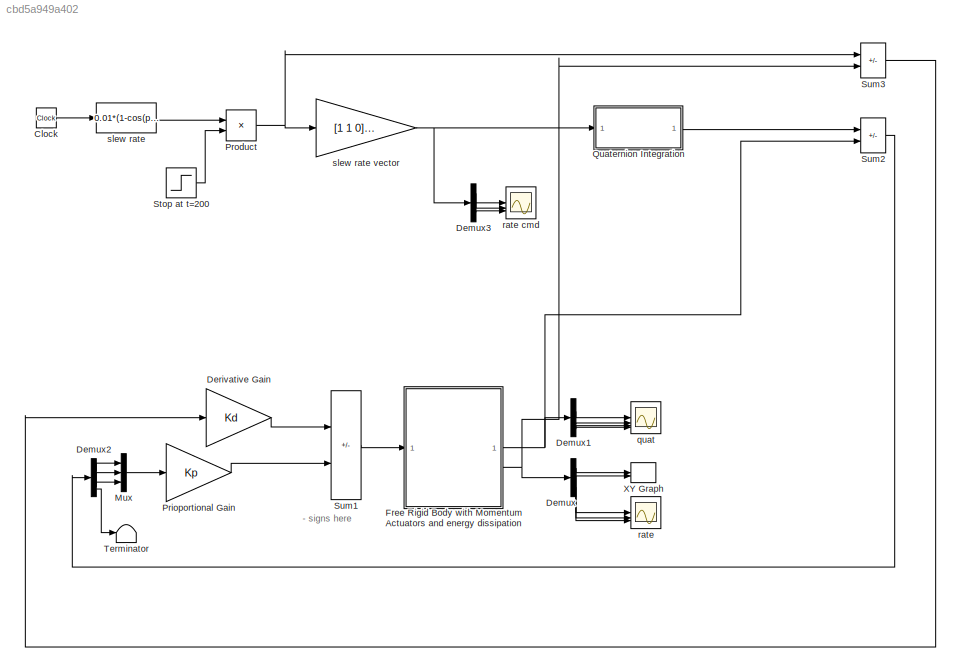
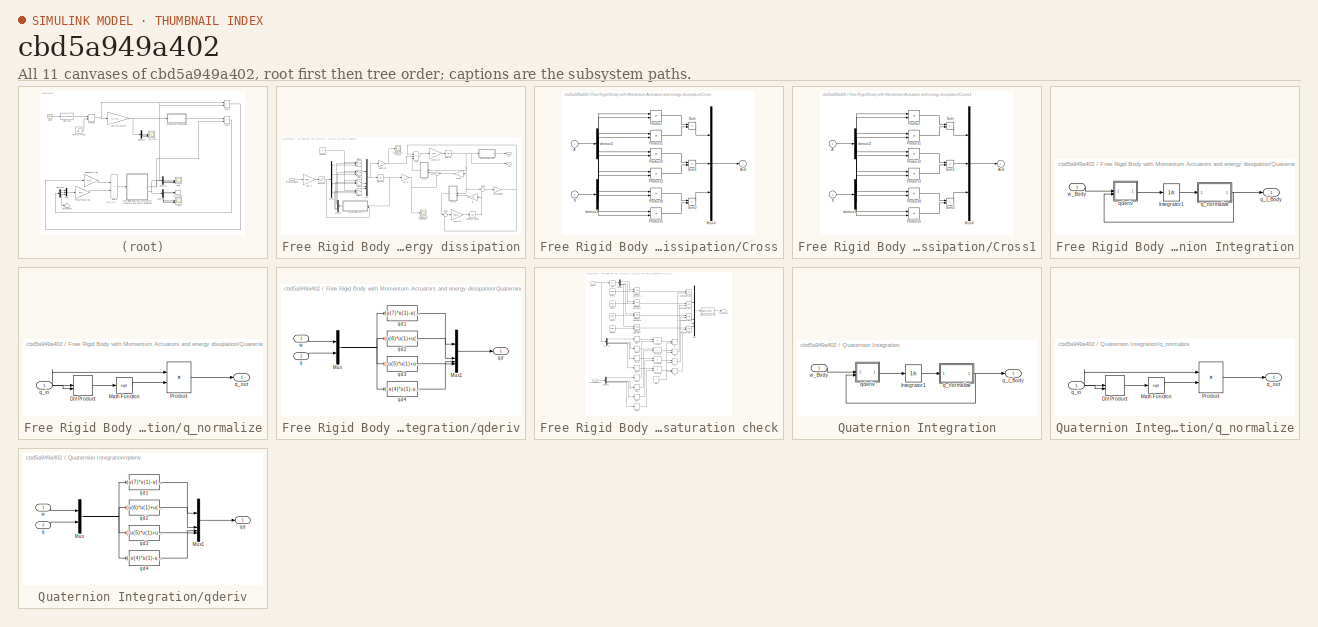
[diagram: thumbnail index - all 11 canvases of the model, root first then tree order]
MODEL slx_cbd5a949a402
KIND model
CONFIG AbsTol = auto
CONFIG EnableMultiTasking = on
CONFIG FixedStep = auto
CONFIG MaxStep = auto
CONFIG MinStep = auto
CONFIG RelTol = 1e-6
CONFIG SampleTimeConstraint = Unconstrained
CONFIG SolverName = ode45
CONFIG StartTime = 0.0
CONFIG StopTime = 300
BLOCK [Clock] Clock
BLOCK [Demux] Demux
  Outputs = 3
BLOCK [Demux] Demux1
BLOCK [Demux] Demux2
BLOCK [Demux] Demux3
  Outputs = 3
BLOCK [Gain] Derivative Gain
  Gain = Kd
  OutDataTypeStr = Inherit: Same as input
  ParamDataTypeStr = Inherit: Same as input
  SaturateOnIntegerOverflow = on
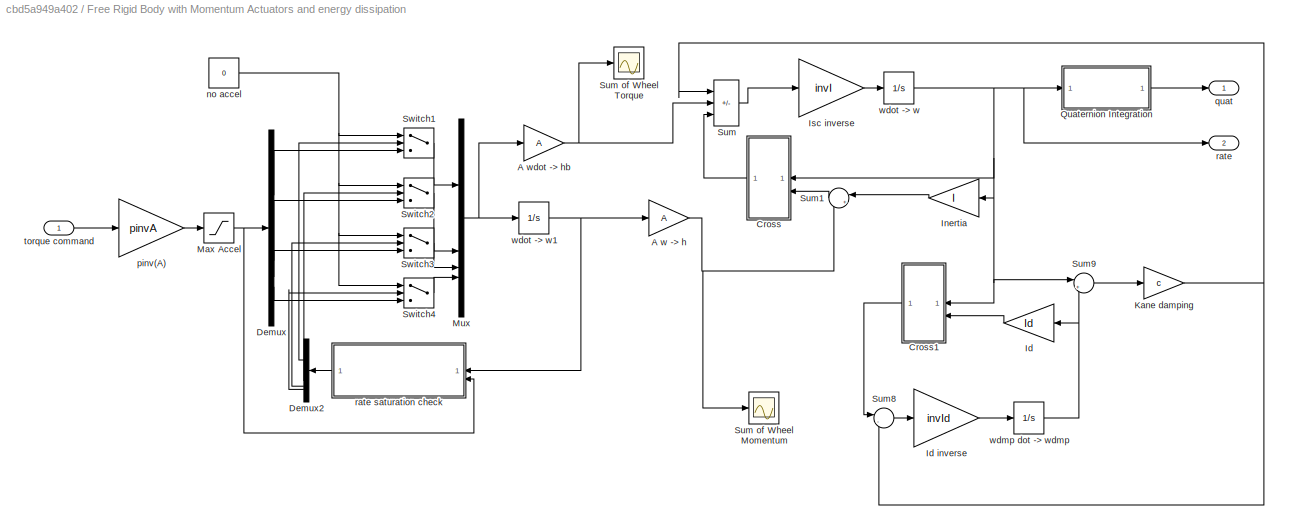
BLOCK [SubSystem] Free Rigid Body with Momentum Actuators and energy dissipation
BLOCK [Gain] Free Rigid Body with Momentum Actuators and energy dissipation/A w -> h
  Gain = A
  Multiplication = Matrix(K*u)
  OutDataTypeStr = Inherit: Same as input
  ParamDataTypeStr = Inherit: Same as input
  SaturateOnIntegerOverflow = on
BLOCK [Gain] Free Rigid Body with Momentum Actuators and energy dissipation/A wdot -> hb
  Gain = A
  Multiplication = Matrix(K*u)
  OutDataTypeStr = Inherit: Same as input
  ParamDataTypeStr = Inherit: Same as input
  SaturateOnIntegerOverflow = on
BLOCK [SubSystem] Free Rigid Body with Momentum Actuators and energy dissipation/Cross
BLOCK [Inport] Free Rigid Body with Momentum Actuators and energy dissipation/Cross/A
BLOCK [Outport] Free Rigid Body with Momentum Actuators and energy dissipation/Cross/AxB
  InitialOutput = 0
BLOCK [Inport] Free Rigid Body with Momentum Actuators and energy dissipation/Cross/B
  Port = 2
BLOCK [Mux] Free Rigid Body with Momentum Actuators and energy dissipation/Cross/Mux4
  Inputs = 3
BLOCK [Product] Free Rigid Body with Momentum Actuators and energy dissipation/Cross/Product
  InputSameDT = on
  OutDataTypeStr = Inherit: Same as first input
  SaturateOnIntegerOverflow = on
BLOCK [Product] Free Rigid Body with Momentum Actuators and energy dissipation/Cross/Product1
  InputSameDT = on
  OutDataTypeStr = Inherit: Same as first input
  SaturateOnIntegerOverflow = on
BLOCK [Product] Free Rigid Body with Momentum Actuators and energy dissipation/Cross/Product2
  InputSameDT = on
  OutDataTypeStr = Inherit: Same as first input
  SaturateOnIntegerOverflow = on
BLOCK [Product] Free Rigid Body with Momentum Actuators and energy dissipation/Cross/Product3
  InputSameDT = on
  OutDataTypeStr = Inherit: Same as first input
  SaturateOnIntegerOverflow = on
BLOCK [Product] Free Rigid Body with Momentum Actuators and energy dissipation/Cross/Product4
  InputSameDT = on
  OutDataTypeStr = Inherit: Same as first input
  SaturateOnIntegerOverflow = on
BLOCK [Product] Free Rigid Body with Momentum Actuators and energy dissipation/Cross/Product5
  InputSameDT = on
  OutDataTypeStr = Inherit: Same as first input
  SaturateOnIntegerOverflow = on
BLOCK [Sum] Free Rigid Body with Momentum Actuators and energy dissipation/Cross/Sum
  IconShape = rectangular
  InputSameDT = on
  Inputs = +-
  OutDataTypeStr = Inherit: Same as first input
  SaturateOnIntegerOverflow = on
BLOCK [Sum] Free Rigid Body with Momentum Actuators and energy dissipation/Cross/Sum1
  IconShape = rectangular
  InputSameDT = on
  Inputs = +-
  OutDataTypeStr = Inherit: Same as first input
  SaturateOnIntegerOverflow = on
BLOCK [Sum] Free Rigid Body with Momentum Actuators and energy dissipation/Cross/Sum2
  IconShape = rectangular
  InputSameDT = on
  Inputs = +-
  OutDataTypeStr = Inherit: Same as first input
  SaturateOnIntegerOverflow = on
BLOCK [Demux] Free Rigid Body with Momentum Actuators and energy dissipation/Cross/demux2
  DisplayOption = none
  Outputs = 3
BLOCK [Demux] Free Rigid Body with Momentum Actuators and energy dissipation/Cross/demux3
  DisplayOption = none
  Outputs = 3
BLOCK [SubSystem] Free Rigid Body with Momentum Actuators and energy dissipation/Cross1
BLOCK [Inport] Free Rigid Body with Momentum Actuators and energy dissipation/Cross1/A
BLOCK [Outport] Free Rigid Body with Momentum Actuators and energy dissipation/Cross1/AxB
  InitialOutput = 0
BLOCK [Inport] Free Rigid Body with Momentum Actuators and energy dissipation/Cross1/B
  Port = 2
BLOCK [Mux] Free Rigid Body with Momentum Actuators and energy dissipation/Cross1/Mux4
  Inputs = 3
BLOCK [Product] Free Rigid Body with Momentum Actuators and energy dissipation/Cross1/Product
  InputSameDT = on
  OutDataTypeStr = Inherit: Same as first input
  SaturateOnIntegerOverflow = on
BLOCK [Product] Free Rigid Body with Momentum Actuators and energy dissipation/Cross1/Product1
  InputSameDT = on
  OutDataTypeStr = Inherit: Same as first input
  SaturateOnIntegerOverflow = on
BLOCK [Product] Free Rigid Body with Momentum Actuators and energy dissipation/Cross1/Product2
  InputSameDT = on
  OutDataTypeStr = Inherit: Same as first input
  SaturateOnIntegerOverflow = on
BLOCK [Product] Free Rigid Body with Momentum Actuators and energy dissipation/Cross1/Product3
  InputSameDT = on
  OutDataTypeStr = Inherit: Same as first input
  SaturateOnIntegerOverflow = on
BLOCK [Product] Free Rigid Body with Momentum Actuators and energy dissipation/Cross1/Product4
  InputSameDT = on
  OutDataTypeStr = Inherit: Same as first input
  SaturateOnIntegerOverflow = on
BLOCK [Product] Free Rigid Body with Momentum Actuators and energy dissipation/Cross1/Product5
  InputSameDT = on
  OutDataTypeStr = Inherit: Same as first input
  SaturateOnIntegerOverflow = on
BLOCK [Sum] Free Rigid Body with Momentum Actuators and energy dissipation/Cross1/Sum
  IconShape = rectangular
  InputSameDT = on
  Inputs = +-
  OutDataTypeStr = Inherit: Same as first input
  SaturateOnIntegerOverflow = on
BLOCK [Sum] Free Rigid Body with Momentum Actuators and energy dissipation/Cross1/Sum1
  IconShape = rectangular
  InputSameDT = on
  Inputs = +-
  OutDataTypeStr = Inherit: Same as first input
  SaturateOnIntegerOverflow = on
BLOCK [Sum] Free Rigid Body with Momentum Actuators and energy dissipation/Cross1/Sum2
  IconShape = rectangular
  InputSameDT = on
  Inputs = +-
  OutDataTypeStr = Inherit: Same as first input
  SaturateOnIntegerOverflow = on
BLOCK [Demux] Free Rigid Body with Momentum Actuators and energy dissipation/Cross1/demux2
  DisplayOption = none
  Outputs = 3
BLOCK [Demux] Free Rigid Body with Momentum Actuators and energy dissipation/Cross1/demux3
  DisplayOption = none
  Outputs = 3
BLOCK [Demux] Free Rigid Body with Momentum Actuators and energy dissipation/Demux
  DisplayOption = none
BLOCK [Demux] Free Rigid Body with Momentum Actuators and energy dissipation/Demux2
  DisplayOption = none
BLOCK [Gain] Free Rigid Body with Momentum Actuators and energy dissipation/Id
  Gain = Id
  Multiplication = Matrix(K*u)
  OutDataTypeStr = Inherit: Same as input
  ParamDataTypeStr = Inherit: Same as input
  SaturateOnIntegerOverflow = on
BLOCK [Gain] Free Rigid Body with Momentum Actuators and energy dissipation/Id inverse
  Gain = invId
  Multiplication = Matrix(K*u)
  OutDataTypeStr = Inherit: Same as input
  ParamDataTypeStr = Inherit: Same as input
  SaturateOnIntegerOverflow = on
BLOCK [Gain] Free Rigid Body with Momentum Actuators and energy dissipation/Inertia
  Gain = I
  Multiplication = Matrix(K*u)
  OutDataTypeStr = Inherit: Same as input
  ParamDataTypeStr = Inherit: Same as input
  SaturateOnIntegerOverflow = on
BLOCK [Gain] Free Rigid Body with Momentum Actuators and energy dissipation/Isc inverse
  Gain = invI
  Multiplication = Matrix(K*u)
  OutDataTypeStr = Inherit: Same as input
  ParamDataTypeStr = Inherit: Same as input
  SaturateOnIntegerOverflow = on
BLOCK [Gain] Free Rigid Body with Momentum Actuators and energy dissipation/Kane damping
  Gain = c
  OutDataTypeStr = Inherit: Same as input
  ParamDataTypeStr = Inherit: Same as input
  SaturateOnIntegerOverflow = on
BLOCK [Saturate] Free Rigid Body with Momentum Actuators and energy dissipation/Max Accel
  LowerLimit = -accelmax
  UpperLimit = accelmax
BLOCK [Mux] Free Rigid Body with Momentum Actuators and energy dissipation/Mux
  DisplayOption = bar
BLOCK [SubSystem] Free Rigid Body with Momentum Actuators and energy dissipation/Quaternion Integration
BLOCK [Integrator] Free Rigid Body with Momentum Actuators and energy dissipation/Quaternion Integration/Integrator1
  InitialCondition = q_init
BLOCK [Outport] Free Rigid Body with Momentum Actuators and energy dissipation/Quaternion Integration/q_I_Body
BLOCK [SubSystem] Free Rigid Body with Momentum Actuators and energy dissipation/Quaternion Integration/q_normalize
BLOCK [DotProduct] Free Rigid Body with Momentum Actuators and energy dissipation/Quaternion Integration/q_normalize/Dot Product
  OutDataTypeStr = Inherit: Inherit via internal rule
BLOCK [Math] Free Rigid Body with Momentum Actuators and energy dissipation/Quaternion Integration/q_normalize/Math Function
  Operator = sqrt
  SignedPower = on
BLOCK [Product] Free Rigid Body with Momentum Actuators and energy dissipation/Quaternion Integration/q_normalize/Product
  InputSameDT = on
  Inputs = */
  OutDataTypeStr = Inherit: Same as first input
  SaturateOnIntegerOverflow = on
BLOCK [Inport] Free Rigid Body with Momentum Actuators and energy dissipation/Quaternion Integration/q_normalize/q_in
  PortDimensions = 4
BLOCK [Outport] Free Rigid Body with Momentum Actuators and energy dissipation/Quaternion Integration/q_normalize/q_out
BLOCK [SubSystem] Free Rigid Body with Momentum Actuators and energy dissipation/Quaternion Integration/qderiv
BLOCK [Mux] Free Rigid Body with Momentum Actuators and energy dissipation/Quaternion Integration/qderiv/Mux
  DisplayOption = bar
  Inputs = 2
BLOCK [Mux] Free Rigid Body with Momentum Actuators and energy dissipation/Quaternion Integration/qderiv/Mux1
  DisplayOption = bar
BLOCK [Inport] Free Rigid Body with Momentum Actuators and energy dissipation/Quaternion Integration/qderiv/q
  Port = 2
BLOCK [Outport] Free Rigid Body with Momentum Actuators and energy dissipation/Quaternion Integration/qderiv/qd
BLOCK [Fcn] Free Rigid Body with Momentum Actuators and energy dissipation/Quaternion Integration/qderiv/qd1
  Expr = (u(7)*u(1)-u(6)*u(2)+u(5)*u(3))/2
BLOCK [Fcn] Free Rigid Body with Momentum Actuators and energy dissipation/Quaternion Integration/qderiv/qd2
  Expr = (u(6)*u(1)+u(7)*u(2)-u(4)*u(3))/2
BLOCK [Fcn] Free Rigid Body with Momentum Actuators and energy dissipation/Quaternion Integration/qderiv/qd3
  Expr = (-u(5)*u(1)+u(4)*u(2)+u(7)*u(3))/2
BLOCK [Fcn] Free Rigid Body with Momentum Actuators and energy dissipation/Quaternion Integration/qderiv/qd4
  Expr = (-u(4)*u(1)-u(5)*u(2)-u(6)*u(3))/2
BLOCK [Inport] Free Rigid Body with Momentum Actuators and energy dissipation/Quaternion Integration/qderiv/w
BLOCK [Inport] Free Rigid Body with Momentum Actuators and energy dissipation/Quaternion Integration/w_Body
BLOCK [Sum] Free Rigid Body with Momentum Actuators and energy dissipation/Sum
  IconShape = rectangular
  InputSameDT = on
  Inputs = |---
  OutDataTypeStr = Inherit: Same as first input
  SaturateOnIntegerOverflow = on
BLOCK [Scope] Free Rigid Body with Momentum Actuators and energy dissipation/Sum of Wheel Momentum
  Floating = off
  NumInputPorts = 1
  ScopeSpecificationString = Simulink.scopes.TimeScopeBlockCfg('CurrentConfiguration', extmgr.ConfigurationSet(extmgr.Configuration('Core','General UI',true),extmgr.Configuration('Core','Source UI',true),extmgr.Configuration('Sources','WiredSimulink',true,'DataLoggingVariableName','ScopeData4','DataLoggingSaveFormat','StructureWithTime','DataLoggingDecimation','1','DataLoggingDecimateData',true),extmgr.Configuration('Visuals'...<+1664ch>
BLOCK [Scope] Free Rigid Body with Momentum Actuators and energy dissipation/Sum of Wheel Torque
  Floating = off
  NumInputPorts = 1
  ScopeSpecificationString = Simulink.scopes.TimeScopeBlockCfg('CurrentConfiguration', extmgr.ConfigurationSet(extmgr.Configuration('Core','General UI',true),extmgr.Configuration('Core','Source UI',true),extmgr.Configuration('Sources','WiredSimulink',true,'DataLoggingVariableName','ScopeData3','DataLoggingSaveFormat','StructureWithTime','DataLoggingDecimation','1','DataLoggingDecimateData',true),extmgr.Configuration('Visuals'...<+1708ch>
BLOCK [Sum] Free Rigid Body with Momentum Actuators and energy dissipation/Sum1
  InputSameDT = on
  Inputs = |++
  OutDataTypeStr = Inherit: Same as first input
  SaturateOnIntegerOverflow = on
BLOCK [Sum] Free Rigid Body with Momentum Actuators and energy dissipation/Sum8
  InputSameDT = on
  Inputs = |-+
  OutDataTypeStr = Inherit: Same as first input
  SaturateOnIntegerOverflow = on
BLOCK [Sum] Free Rigid Body with Momentum Actuators and energy dissipation/Sum9
  InputSameDT = on
  Inputs = |+-
  OutDataTypeStr = Inherit: Same as first input
  SaturateOnIntegerOverflow = on
BLOCK [Switch] Free Rigid Body with Momentum Actuators and energy dissipation/Switch1
  Threshold = 0.5
BLOCK [Switch] Free Rigid Body with Momentum Actuators and energy dissipation/Switch2
  Threshold = 0.5
BLOCK [Switch] Free Rigid Body with Momentum Actuators and energy dissipation/Switch3
  Threshold = 0.5
BLOCK [Switch] Free Rigid Body with Momentum Actuators and energy dissipation/Switch4
  Threshold = 0.5
BLOCK [Constant] Free Rigid Body with Momentum Actuators and energy dissipation/no accel
  Value = 0
BLOCK [Gain] Free Rigid Body with Momentum Actuators and energy dissipation/pinv(A)
  Gain = pinvA
  Multiplication = Matrix(K*u)
  OutDataTypeStr = Inherit: Same as input
  ParamDataTypeStr = Inherit: Same as input
  SaturateOnIntegerOverflow = on
BLOCK [Outport] Free Rigid Body with Momentum Actuators and energy dissipation/quat
BLOCK [Outport] Free Rigid Body with Momentum Actuators and energy dissipation/rate
  Port = 2
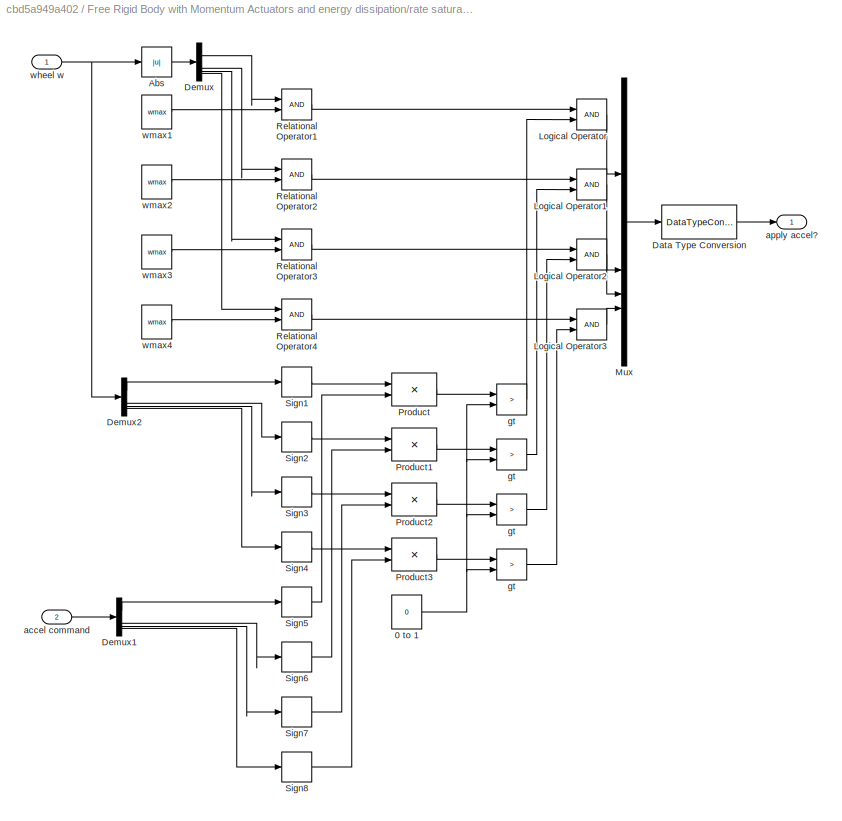
BLOCK [SubSystem] Free Rigid Body with Momentum Actuators and energy dissipation/rate saturation check
BLOCK [Constant] Free Rigid Body with Momentum Actuators and energy dissipation/rate saturation check/0 to 1
  Value = 0
  VectorParams1D = off
BLOCK [Abs] Free Rigid Body with Momentum Actuators and energy dissipation/rate saturation check/Abs
BLOCK [DataTypeConversion] Free Rigid Body with Momentum Actuators and energy dissipation/rate saturation check/Data Type Conversion
  RndMeth = Floor
  SaturateOnIntegerOverflow = off
BLOCK [Demux] Free Rigid Body with Momentum Actuators and energy dissipation/rate saturation check/Demux
  DisplayOption = none
BLOCK [Demux] Free Rigid Body with Momentum Actuators and energy dissipation/rate saturation check/Demux1
  DisplayOption = none
BLOCK [Demux] Free Rigid Body with Momentum Actuators and energy dissipation/rate saturation check/Demux2
  DisplayOption = none
BLOCK [Logic] Free Rigid Body with Momentum Actuators and energy dissipation/rate saturation check/Logical Operator
BLOCK [Logic] Free Rigid Body with Momentum Actuators and energy dissipation/rate saturation check/Logical Operator1
BLOCK [Logic] Free Rigid Body with Momentum Actuators and energy dissipation/rate saturation check/Logical Operator2
BLOCK [Logic] Free Rigid Body with Momentum Actuators and energy dissipation/rate saturation check/Logical Operator3
  NameLocation = top
BLOCK [Mux] Free Rigid Body with Momentum Actuators and energy dissipation/rate saturation check/Mux
  DisplayOption = bar
BLOCK [Product] Free Rigid Body with Momentum Actuators and energy dissipation/rate saturation check/Product
  InputSameDT = on
  OutDataTypeStr = Inherit: Same as first input
  SaturateOnIntegerOverflow = on
BLOCK [Product] Free Rigid Body with Momentum Actuators and energy dissipation/rate saturation check/Product1
  InputSameDT = on
  OutDataTypeStr = Inherit: Same as first input
  SaturateOnIntegerOverflow = on
BLOCK [Product] Free Rigid Body with Momentum Actuators and energy dissipation/rate saturation check/Product2
  InputSameDT = on
  OutDataTypeStr = Inherit: Same as first input
  SaturateOnIntegerOverflow = on
BLOCK [Product] Free Rigid Body with Momentum Actuators and energy dissipation/rate saturation check/Product3
  InputSameDT = on
  OutDataTypeStr = Inherit: Same as first input
  SaturateOnIntegerOverflow = on
BLOCK [RelationalOperator] Free Rigid Body with Momentum Actuators and energy dissipation/rate saturation check/Relational Operator1
BLOCK [RelationalOperator] Free Rigid Body with Momentum Actuators and energy dissipation/rate saturation check/Relational Operator2
BLOCK [RelationalOperator] Free Rigid Body with Momentum Actuators and energy dissipation/rate saturation check/Relational Operator3
BLOCK [RelationalOperator] Free Rigid Body with Momentum Actuators and energy dissipation/rate saturation check/Relational Operator4
BLOCK [Signum] Free Rigid Body with Momentum Actuators and energy dissipation/rate saturation check/Sign1
BLOCK [Signum] Free Rigid Body with Momentum Actuators and energy dissipation/rate saturation check/Sign2
BLOCK [Signum] Free Rigid Body with Momentum Actuators and energy dissipation/rate saturation check/Sign3
BLOCK [Signum] Free Rigid Body with Momentum Actuators and energy dissipation/rate saturation check/Sign4
BLOCK [Signum] Free Rigid Body with Momentum Actuators and energy dissipation/rate saturation check/Sign5
BLOCK [Signum] Free Rigid Body with Momentum Actuators and energy dissipation/rate saturation check/Sign6
BLOCK [Signum] Free Rigid Body with Momentum Actuators and energy dissipation/rate saturation check/Sign7
BLOCK [Signum] Free Rigid Body with Momentum Actuators and energy dissipation/rate saturation check/Sign8
BLOCK [Inport] Free Rigid Body with Momentum Actuators and energy dissipation/rate saturation check/accel command
  Port = 2
BLOCK [Outport] Free Rigid Body with Momentum Actuators and energy dissipation/rate saturation check/apply accel?
BLOCK [RelationalOperator] Free Rigid Body with Momentum Actuators and energy dissipation/rate saturation check/gt
  Operator = >
BLOCK [RelationalOperator] Free Rigid Body with Momentum Actuators and energy dissipation/rate saturation check/gt 
  Operator = >
BLOCK [RelationalOperator] Free Rigid Body with Momentum Actuators and energy dissipation/rate saturation check/gt  
  Operator = >
BLOCK [RelationalOperator] Free Rigid Body with Momentum Actuators and energy dissipation/rate saturation check/gt   
  Operator = >
BLOCK [Inport] Free Rigid Body with Momentum Actuators and energy dissipation/rate saturation check/wheel w
BLOCK [Constant] Free Rigid Body with Momentum Actuators and energy dissipation/rate saturation check/wmax1
  Value = wmax
  VectorParams1D = off
BLOCK [Constant] Free Rigid Body with Momentum Actuators and energy dissipation/rate saturation check/wmax2
  Value = wmax
  VectorParams1D = off
BLOCK [Constant] Free Rigid Body with Momentum Actuators and energy dissipation/rate saturation check/wmax3
  Value = wmax
  VectorParams1D = off
BLOCK [Constant] Free Rigid Body with Momentum Actuators and energy dissipation/rate saturation check/wmax4
  Value = wmax
  VectorParams1D = off
BLOCK [Inport] Free Rigid Body with Momentum Actuators and energy dissipation/torque command
BLOCK [Integrator] Free Rigid Body with Momentum Actuators and energy dissipation/wdmp dot -> wdmp
  InitialCondition = wdn_init
BLOCK [Integrator] Free Rigid Body with Momentum Actuators and energy dissipation/wdot -> w
  InitialCondition = wbn_init
BLOCK [Integrator] Free Rigid Body with Momentum Actuators and energy dissipation/wdot -> w1
  InitialCondition = ww0
BLOCK [Mux] Mux
  DisplayOption = bar
  Inputs = 3
BLOCK [Gain] Prioportional Gain
  Gain = Kp
  OutDataTypeStr = Inherit: Same as input
  ParamDataTypeStr = Inherit: Same as input
  SaturateOnIntegerOverflow = on
BLOCK [Product] Product
  InputSameDT = on
  OutDataTypeStr = Inherit: Same as first input
  SaturateOnIntegerOverflow = on
BLOCK [SubSystem] Quaternion Integration
BLOCK [Integrator] Quaternion Integration/Integrator1
  InitialCondition = q_init
BLOCK [Outport] Quaternion Integration/q_I_Body
BLOCK [SubSystem] Quaternion Integration/q_normalize
BLOCK [DotProduct] Quaternion Integration/q_normalize/Dot Product
  OutDataTypeStr = Inherit: Inherit via internal rule
BLOCK [Math] Quaternion Integration/q_normalize/Math Function
  Operator = sqrt
  SignedPower = on
BLOCK [Product] Quaternion Integration/q_normalize/Product
  InputSameDT = on
  Inputs = */
  OutDataTypeStr = Inherit: Same as first input
  SaturateOnIntegerOverflow = on
BLOCK [Inport] Quaternion Integration/q_normalize/q_in
  PortDimensions = 4
BLOCK [Outport] Quaternion Integration/q_normalize/q_out
BLOCK [SubSystem] Quaternion Integration/qderiv
BLOCK [Mux] Quaternion Integration/qderiv/Mux
  DisplayOption = bar
  Inputs = 2
BLOCK [Mux] Quaternion Integration/qderiv/Mux1
  DisplayOption = bar
BLOCK [Inport] Quaternion Integration/qderiv/q
  Port = 2
BLOCK [Outport] Quaternion Integration/qderiv/qd
BLOCK [Fcn] Quaternion Integration/qderiv/qd1
  Expr = (u(7)*u(1)-u(6)*u(2)+u(5)*u(3))/2
BLOCK [Fcn] Quaternion Integration/qderiv/qd2
  Expr = (u(6)*u(1)+u(7)*u(2)-u(4)*u(3))/2
BLOCK [Fcn] Quaternion Integration/qderiv/qd3
  Expr = (-u(5)*u(1)+u(4)*u(2)+u(7)*u(3))/2
BLOCK [Fcn] Quaternion Integration/qderiv/qd4
  Expr = (-u(4)*u(1)-u(5)*u(2)-u(6)*u(3))/2
BLOCK [Inport] Quaternion Integration/qderiv/w
BLOCK [Inport] Quaternion Integration/w_Body
BLOCK [Step] Stop at t=200
  After = 0
  Before = 1
  SampleTime = 0
  Time = 200
BLOCK [Sum] Sum1
  IconShape = rectangular
  InputSameDT = on
  Inputs = --
  OutDataTypeStr = Inherit: Same as first input
  SaturateOnIntegerOverflow = on
BLOCK [Sum] Sum2
  IconShape = rectangular
  InputSameDT = on
  Inputs = +-
  OutDataTypeStr = Inherit: Same as first input
  SaturateOnIntegerOverflow = on
BLOCK [Sum] Sum3
  IconShape = rectangular
  InputSameDT = on
  Inputs = +-
  OutDataTypeStr = Inherit: Same as first input
  SaturateOnIntegerOverflow = on
BLOCK [Terminator] Terminator
BLOCK [Record] XY Graph
  CompatibilityTag = XY
  FileSettingsInternal = {"entries":[{"content":{"excelSettings":{"content":{},"type":"Streamout.ExcelSettings"}},"type":"Streamout.FileSettingStorage","uuid":""}],"packageUris":["http:\/\/schema.mathworks.com\/mf0\/streamout_blocks\/R2020a"],"version":"1.0"}
  Layout = [1 1]
  SignalsInternal = {"entries":[{"content":{"signals":[{"content":{"blockPath":[],"dimensions":[1],"domain":"","lineColor":"#a2142f","plots":[ 1 ],"port":1,"sid":[""],"signalID":1,"signalName":"Demux:1"},"type":"RecordBlkView.Signal","uuid":""},{"content":{"blockPath":[],"dimensions":[1],"domain":"","lineColor":"#139fff","plots":[ 1 ],"port":2,"sid":[""],"signalID":2,"signalName":"Demux:2"},"type":"RecordBlkView.Sign...<+160ch>
  VisualizationBindings = {"xyplotplugin":{"info":[{"series":[{"bindingParametersList":[{"parameter":"X-Axis","signalID":1,"signalName":"Demux:1"},{"parameter":"Y-Axis","signalID":2,"signalName":"Demux:2"}],"seriesID":0}],"subplotID":1}]}}
  st = .25
BLOCK [Scope] quat
  Floating = off
  NumInputPorts = 4
  ScopeSpecificationString = Simulink.scopes.TimeScopeBlockCfg('CurrentConfiguration', extmgr.ConfigurationSet(extmgr.Configuration('Core','General UI',true),extmgr.Configuration('Core','Source UI',true),extmgr.Configuration('Sources','WiredSimulink',true,'DataLoggingVariableName','ScopeData1','DataLoggingSaveFormat','StructureWithTime','DataLoggingDecimation','1','DataLoggingDecimateData',true),extmgr.Configuration('Visuals'...<+3701ch>
BLOCK [Scope] rate
  Floating = off
  NumInputPorts = 3
  ScopeSpecificationString = Simulink.scopes.TimeScopeBlockCfg('CurrentConfiguration', extmgr.ConfigurationSet(extmgr.Configuration('Core','General UI',true),extmgr.Configuration('Core','Source UI',true),extmgr.Configuration('Sources','WiredSimulink',true,'DataLoggingSaveFormat','StructureWithTime','DataLoggingDecimation','1','DataLoggingDecimateData',true),extmgr.Configuration('Visuals','Time Domain',true,'SerializedDisplays...<+3222ch>
BLOCK [Scope] rate cmd
  Floating = off
  NumInputPorts = 3
  ScopeSpecificationString = Simulink.scopes.TimeScopeBlockCfg('CurrentConfiguration', extmgr.ConfigurationSet(extmgr.Configuration('Core','General UI',true),extmgr.Configuration('Core','Source UI',true),extmgr.Configuration('Sources','WiredSimulink',true,'DataLoggingVariableName','ScopeData2','DataLoggingSaveFormat','StructureWithTime','DataLoggingDecimation','1','DataLoggingDecimateData',true),extmgr.Configuration('Visuals'...<+3021ch>
BLOCK [Fcn] slew rate
  Expr = 0.01*(1-cos(pi()*u(1)/100))
BLOCK [Gain] slew rate vector
  Gain = [1 1 0].'
  Multiplication = Matrix(K*u)
  OutDataTypeStr = Inherit: Same as input
  ParamDataTypeStr = Inherit: Same as input
  SaturateOnIntegerOverflow = on
ANNOTATION (root): - signs here
LINE Clock:1 -> slew rate:1
LINE Demux1:1 -> quat:1
LINE Demux1:2 -> quat:2
LINE Demux1:3 -> quat:3
LINE Demux1:4 -> quat:4
LINE Demux2:1 -> Mux:1
LINE Demux2:2 -> Mux:2
LINE Demux2:3 -> Mux:3
LINE Demux2:4 -> Terminator:1
LINE Demux3:1 -> rate cmd:1
LINE Demux3:2 -> rate cmd:2
LINE Demux3:3 -> rate cmd:3
NET Demux:1 -> XY Graph:1, rate:1
NET Demux:2 -> XY Graph:2, rate:2
LINE Demux:3 -> rate:3
LINE Derivative Gain:1 -> Sum1:1
NET Free Rigid Body with Momentum Actuators and energy dissipation/A w -> h:1 -> Free Rigid Body with Momentum Actuators and energy dissipation/Sum of Wheel Momentum:1, Free Rigid Body with Momentum Actuators and energy dissipation/Sum1:2
NET Free Rigid Body with Momentum Actuators and energy dissipation/A wdot -> hb:1 -> Free Rigid Body with Momentum Actuators and energy dissipation/Sum of Wheel Torque:1, Free Rigid Body with Momentum Actuators and energy dissipation/Sum:2
LINE Free Rigid Body with Momentum Actuators and energy dissipation/Cross/A:1 -> Free Rigid Body with Momentum Actuators and energy dissipation/Cross/demux2:1
LINE Free Rigid Body with Momentum Actuators and energy dissipation/Cross/B:1 -> Free Rigid Body with Momentum Actuators and energy dissipation/Cross/demux3:1
LINE Free Rigid Body with Momentum Actuators and energy dissipation/Cross/Mux4:1 -> Free Rigid Body with Momentum Actuators and energy dissipation/Cross/AxB:1
LINE Free Rigid Body with Momentum Actuators and energy dissipation/Cross/Product1:1 -> Free Rigid Body with Momentum Actuators and energy dissipation/Cross/Sum:2
LINE Free Rigid Body with Momentum Actuators and energy dissipation/Cross/Product2:1 -> Free Rigid Body with Momentum Actuators and energy dissipation/Cross/Sum1:1
LINE Free Rigid Body with Momentum Actuators and energy dissipation/Cross/Product3:1 -> Free Rigid Body with Momentum Actuators and energy dissipation/Cross/Sum1:2
LINE Free Rigid Body with Momentum Actuators and energy dissipation/Cross/Product4:1 -> Free Rigid Body with Momentum Actuators and energy dissipation/Cross/Sum2:1
LINE Free Rigid Body with Momentum Actuators and energy dissipation/Cross/Product5:1 -> Free Rigid Body with Momentum Actuators and energy dissipation/Cross/Sum2:2
LINE Free Rigid Body with Momentum Actuators and energy dissipation/Cross/Product:1 -> Free Rigid Body with Momentum Actuators and energy dissipation/Cross/Sum:1
LINE Free Rigid Body with Momentum Actuators and energy dissipation/Cross/Sum1:1 -> Free Rigid Body with Momentum Actuators and energy dissipation/Cross/Mux4:2
LINE Free Rigid Body with Momentum Actuators and energy dissipation/Cross/Sum2:1 -> Free Rigid Body with Momentum Actuators and energy dissipation/Cross/Mux4:3
LINE Free Rigid Body with Momentum Actuators and energy dissipation/Cross/Sum:1 -> Free Rigid Body with Momentum Actuators and energy dissipation/Cross/Mux4:1
NET Free Rigid Body with Momentum Actuators and energy dissipation/Cross/demux2:1 -> Free Rigid Body with Momentum Actuators and energy dissipation/Cross/Product3:1, Free Rigid Body with Momentum Actuators and energy dissipation/Cross/Product4:1
NET Free Rigid Body with Momentum Actuators and energy dissipation/Cross/demux2:2 -> Free Rigid Body with Momentum Actuators and energy dissipation/Cross/Product5:1, Free Rigid Body with Momentum Actuators and energy dissipation/Cross/Product:1
NET Free Rigid Body with Momentum Actuators and energy dissipation/Cross/demux2:3 -> Free Rigid Body with Momentum Actuators and energy dissipation/Cross/Product1:1, Free Rigid Body with Momentum Actuators and energy dissipation/Cross/Product2:1
NET Free Rigid Body with Momentum Actuators and energy dissipation/Cross/demux3:1 -> Free Rigid Body with Momentum Actuators and energy dissipation/Cross/Product2:2, Free Rigid Body with Momentum Actuators and energy dissipation/Cross/Product5:2
NET Free Rigid Body with Momentum Actuators and energy dissipation/Cross/demux3:2 -> Free Rigid Body with Momentum Actuators and energy dissipation/Cross/Product1:2, Free Rigid Body with Momentum Actuators and energy dissipation/Cross/Product4:2
NET Free Rigid Body with Momentum Actuators and energy dissipation/Cross/demux3:3 -> Free Rigid Body with Momentum Actuators and energy dissipation/Cross/Product3:2, Free Rigid Body with Momentum Actuators and energy dissipation/Cross/Product:2
LINE Free Rigid Body with Momentum Actuators and energy dissipation/Cross1/A:1 -> Free Rigid Body with Momentum Actuators and energy dissipation/Cross1/demux2:1
LINE Free Rigid Body with Momentum Actuators and energy dissipation/Cross1/B:1 -> Free Rigid Body with Momentum Actuators and energy dissipation/Cross1/demux3:1
LINE Free Rigid Body with Momentum Actuators and energy dissipation/Cross1/Mux4:1 -> Free Rigid Body with Momentum Actuators and energy dissipation/Cross1/AxB:1
LINE Free Rigid Body with Momentum Actuators and energy dissipation/Cross1/Product1:1 -> Free Rigid Body with Momentum Actuators and energy dissipation/Cross1/Sum:2
LINE Free Rigid Body with Momentum Actuators and energy dissipation/Cross1/Product2:1 -> Free Rigid Body with Momentum Actuators and energy dissipation/Cross1/Sum1:1
LINE Free Rigid Body with Momentum Actuators and energy dissipation/Cross1/Product3:1 -> Free Rigid Body with Momentum Actuators and energy dissipation/Cross1/Sum1:2
LINE Free Rigid Body with Momentum Actuators and energy dissipation/Cross1/Product4:1 -> Free Rigid Body with Momentum Actuators and energy dissipation/Cross1/Sum2:1
LINE Free Rigid Body with Momentum Actuators and energy dissipation/Cross1/Product5:1 -> Free Rigid Body with Momentum Actuators and energy dissipation/Cross1/Sum2:2
LINE Free Rigid Body with Momentum Actuators and energy dissipation/Cross1/Product:1 -> Free Rigid Body with Momentum Actuators and energy dissipation/Cross1/Sum:1
LINE Free Rigid Body with Momentum Actuators and energy dissipation/Cross1/Sum1:1 -> Free Rigid Body with Momentum Actuators and energy dissipation/Cross1/Mux4:2
LINE Free Rigid Body with Momentum Actuators and energy dissipation/Cross1/Sum2:1 -> Free Rigid Body with Momentum Actuators and energy dissipation/Cross1/Mux4:3
LINE Free Rigid Body with Momentum Actuators and energy dissipation/Cross1/Sum:1 -> Free Rigid Body with Momentum Actuators and energy dissipation/Cross1/Mux4:1
NET Free Rigid Body with Momentum Actuators and energy dissipation/Cross1/demux2:1 -> Free Rigid Body with Momentum Actuators and energy dissipation/Cross1/Product3:1, Free Rigid Body with Momentum Actuators and energy dissipation/Cross1/Product4:1
NET Free Rigid Body with Momentum Actuators and energy dissipation/Cross1/demux2:2 -> Free Rigid Body with Momentum Actuators and energy dissipation/Cross1/Product5:1, Free Rigid Body with Momentum Actuators and energy dissipation/Cross1/Product:1
NET Free Rigid Body with Momentum Actuators and energy dissipation/Cross1/demux2:3 -> Free Rigid Body with Momentum Actuators and energy dissipation/Cross1/Product1:1, Free Rigid Body with Momentum Actuators and energy dissipation/Cross1/Product2:1
NET Free Rigid Body with Momentum Actuators and energy dissipation/Cross1/demux3:1 -> Free Rigid Body with Momentum Actuators and energy dissipation/Cross1/Product2:2, Free Rigid Body with Momentum Actuators and energy dissipation/Cross1/Product5:2
NET Free Rigid Body with Momentum Actuators and energy dissipation/Cross1/demux3:2 -> Free Rigid Body with Momentum Actuators and energy dissipation/Cross1/Product1:2, Free Rigid Body with Momentum Actuators and energy dissipation/Cross1/Product4:2
NET Free Rigid Body with Momentum Actuators and energy dissipation/Cross1/demux3:3 -> Free Rigid Body with Momentum Actuators and energy dissipation/Cross1/Product3:2, Free Rigid Body with Momentum Actuators and energy dissipation/Cross1/Product:2
LINE Free Rigid Body with Momentum Actuators and energy dissipation/Cross1:1 -> Free Rigid Body with Momentum Actuators and energy dissipation/Sum8:1
LINE Free Rigid Body with Momentum Actuators and energy dissipation/Cross:1 -> Free Rigid Body with Momentum Actuators and energy dissipation/Sum:3
LINE Free Rigid Body with Momentum Actuators and energy dissipation/Demux2:1 -> Free Rigid Body with Momentum Actuators and energy dissipation/Switch1:2
LINE Free Rigid Body with Momentum Actuators and energy dissipation/Demux2:2 -> Free Rigid Body with Momentum Actuators and energy dissipation/Switch2:2
LINE Free Rigid Body with Momentum Actuators and energy dissipation/Demux2:3 -> Free Rigid Body with Momentum Actuators and energy dissipation/Switch3:2
LINE Free Rigid Body with Momentum Actuators and energy dissipation/Demux2:4 -> Free Rigid Body with Momentum Actuators and energy dissipation/Switch4:2
LINE Free Rigid Body with Momentum Actuators and energy dissipation/Demux:1 -> Free Rigid Body with Momentum Actuators and energy dissipation/Switch1:3
LINE Free Rigid Body with Momentum Actuators and energy dissipation/Demux:2 -> Free Rigid Body with Momentum Actuators and energy dissipation/Switch2:3
LINE Free Rigid Body with Momentum Actuators and energy dissipation/Demux:3 -> Free Rigid Body with Momentum Actuators and energy dissipation/Switch3:3
LINE Free Rigid Body with Momentum Actuators and energy dissipation/Demux:4 -> Free Rigid Body with Momentum Actuators and energy dissipation/Switch4:3
LINE Free Rigid Body with Momentum Actuators and energy dissipation/Id inverse:1 -> Free Rigid Body with Momentum Actuators and energy dissipation/wdmp dot -> wdmp:1
LINE Free Rigid Body with Momentum Actuators and energy dissipation/Id:1 -> Free Rigid Body with Momentum Actuators and energy dissipation/Cross1:2
LINE Free Rigid Body with Momentum Actuators and energy dissipation/Inertia:1 -> Free Rigid Body with Momentum Actuators and energy dissipation/Sum1:1
LINE Free Rigid Body with Momentum Actuators and energy dissipation/Isc inverse:1 -> Free Rigid Body with Momentum Actuators and energy dissipation/wdot -> w:1
NET Free Rigid Body with Momentum Actuators and energy dissipation/Kane damping:1 -> Free Rigid Body with Momentum Actuators and energy dissipation/Sum8:2, Free Rigid Body with Momentum Actuators and energy dissipation/Sum:1
NET Free Rigid Body with Momentum Actuators and energy dissipation/Max Accel:1 -> Free Rigid Body with Momentum Actuators and energy dissipation/Demux:1, Free Rigid Body with Momentum Actuators and energy dissipation/rate saturation check:2
NET Free Rigid Body with Momentum Actuators and energy dissipation/Mux:1 -> Free Rigid Body with Momentum Actuators and energy dissipation/A wdot -> hb:1, Free Rigid Body with Momentum Actuators and energy dissipation/wdot -> w1:1
LINE Free Rigid Body with Momentum Actuators and energy dissipation/Quaternion Integration/Integrator1:1 -> Free Rigid Body with Momentum Actuators and energy dissipation/Quaternion Integration/q_normalize:1
LINE Free Rigid Body with Momentum Actuators and energy dissipation/Quaternion Integration/q_normalize/Dot Product:1 -> Free Rigid Body with Momentum Actuators and energy dissipation/Quaternion Integration/q_normalize/Math Function:1
LINE Free Rigid Body with Momentum Actuators and energy dissipation/Quaternion Integration/q_normalize/Math Function:1 -> Free Rigid Body with Momentum Actuators and energy dissipation/Quaternion Integration/q_normalize/Product:2
LINE Free Rigid Body with Momentum Actuators and energy dissipation/Quaternion Integration/q_normalize/Product:1 -> Free Rigid Body with Momentum Actuators and energy dissipation/Quaternion Integration/q_normalize/q_out:1
NET Free Rigid Body with Momentum Actuators and energy dissipation/Quaternion Integration/q_normalize/q_in:1 -> Free Rigid Body with Momentum Actuators and energy dissipation/Quaternion Integration/q_normalize/Dot Product:1, Free Rigid Body with Momentum Actuators and energy dissipation/Quaternion Integration/q_normalize/Dot Product:2, Free Rigid Body with Momentum Actuators and energy dissipation/Quaternion Integration/q_normalize/Product:1
NET Free Rigid Body with Momentum Actuators and energy dissipation/Quaternion Integration/q_normalize:1 -> Free Rigid Body with Momentum Actuators and energy dissipation/Quaternion Integration/q_I_Body:1, Free Rigid Body with Momentum Actuators and energy dissipation/Quaternion Integration/qderiv:2
LINE Free Rigid Body with Momentum Actuators and energy dissipation/Quaternion Integration/qderiv/Mux1:1 -> Free Rigid Body with Momentum Actuators and energy dissipation/Quaternion Integration/qderiv/qd:1
NET Free Rigid Body with Momentum Actuators and energy dissipation/Quaternion Integration/qderiv/Mux:1 -> Free Rigid Body with Momentum Actuators and energy dissipation/Quaternion Integration/qderiv/qd1:1, Free Rigid Body with Momentum Actuators and energy dissipation/Quaternion Integration/qderiv/qd2:1, Free Rigid Body with Momentum Actuators and energy dissipation/Quaternion Integration/qderiv/qd3:1, Free Rigid Body with Momentum Actuators and energy dissipation/Quaternion Integration/qderiv/qd4:1
LINE Free Rigid Body with Momentum Actuators and energy dissipation/Quaternion Integration/qderiv/q:1 -> Free Rigid Body with Momentum Actuators and energy dissipation/Quaternion Integration/qderiv/Mux:2
LINE Free Rigid Body with Momentum Actuators and energy dissipation/Quaternion Integration/qderiv/qd1:1 -> Free Rigid Body with Momentum Actuators and energy dissipation/Quaternion Integration/qderiv/Mux1:1
LINE Free Rigid Body with Momentum Actuators and energy dissipation/Quaternion Integration/qderiv/qd2:1 -> Free Rigid Body with Momentum Actuators and energy dissipation/Quaternion Integration/qderiv/Mux1:2
LINE Free Rigid Body with Momentum Actuators and energy dissipation/Quaternion Integration/qderiv/qd3:1 -> Free Rigid Body with Momentum Actuators and energy dissipation/Quaternion Integration/qderiv/Mux1:3
LINE Free Rigid Body with Momentum Actuators and energy dissipation/Quaternion Integration/qderiv/qd4:1 -> Free Rigid Body with Momentum Actuators and energy dissipation/Quaternion Integration/qderiv/Mux1:4
LINE Free Rigid Body with Momentum Actuators and energy dissipation/Quaternion Integration/qderiv/w:1 -> Free Rigid Body with Momentum Actuators and energy dissipation/Quaternion Integration/qderiv/Mux:1
LINE Free Rigid Body with Momentum Actuators and energy dissipation/Quaternion Integration/qderiv:1 -> Free Rigid Body with Momentum Actuators and energy dissipation/Quaternion Integration/Integrator1:1
LINE Free Rigid Body with Momentum Actuators and energy dissipation/Quaternion Integration/w_Body:1 -> Free Rigid Body with Momentum Actuators and energy dissipation/Quaternion Integration/qderiv:1
LINE Free Rigid Body with Momentum Actuators and energy dissipation/Quaternion Integration:1 -> Free Rigid Body with Momentum Actuators and energy dissipation/quat:1
LINE Free Rigid Body with Momentum Actuators and energy dissipation/Sum1:1 -> Free Rigid Body with Momentum Actuators and energy dissipation/Cross:2
LINE Free Rigid Body with Momentum Actuators and energy dissipation/Sum8:1 -> Free Rigid Body with Momentum Actuators and energy dissipation/Id inverse:1
LINE Free Rigid Body with Momentum Actuators and energy dissipation/Sum9:1 -> Free Rigid Body with Momentum Actuators and energy dissipation/Kane damping:1
LINE Free Rigid Body with Momentum Actuators and energy dissipation/Sum:1 -> Free Rigid Body with Momentum Actuators and energy dissipation/Isc inverse:1
LINE Free Rigid Body with Momentum Actuators and energy dissipation/Switch1:1 -> Free Rigid Body with Momentum Actuators and energy dissipation/Mux:1
LINE Free Rigid Body with Momentum Actuators and energy dissipation/Switch2:1 -> Free Rigid Body with Momentum Actuators and energy dissipation/Mux:2
LINE Free Rigid Body with Momentum Actuators and energy dissipation/Switch3:1 -> Free Rigid Body with Momentum Actuators and energy dissipation/Mux:3
LINE Free Rigid Body with Momentum Actuators and energy dissipation/Switch4:1 -> Free Rigid Body with Momentum Actuators and energy dissipation/Mux:4
NET Free Rigid Body with Momentum Actuators and energy dissipation/no accel:1 -> Free Rigid Body with Momentum Actuators and energy dissipation/Switch1:1, Free Rigid Body with Momentum Actuators and energy dissipation/Switch2:1, Free Rigid Body with Momentum Actuators and energy dissipation/Switch3:1, Free Rigid Body with Momentum Actuators and energy dissipation/Switch4:1
LINE Free Rigid Body with Momentum Actuators and energy dissipation/pinv(A):1 -> Free Rigid Body with Momentum Actuators and energy dissipation/Max Accel:1
NET Free Rigid Body with Momentum Actuators and energy dissipation/rate saturation check/0 to 1:1 -> Free Rigid Body with Momentum Actuators and energy dissipation/rate saturation check/gt   :2, Free Rigid Body with Momentum Actuators and energy dissipation/rate saturation check/gt  :2, Free Rigid Body with Momentum Actuators and energy dissipation/rate saturation check/gt :2, Free Rigid Body with Momentum Actuators and energy dissipation/rate saturation check/gt:2
LINE Free Rigid Body with Momentum Actuators and energy dissipation/rate saturation check/Abs:1 -> Free Rigid Body with Momentum Actuators and energy dissipation/rate saturation check/Demux:1
LINE Free Rigid Body with Momentum Actuators and energy dissipation/rate saturation check/Data Type Conversion:1 -> Free Rigid Body with Momentum Actuators and energy dissipation/rate saturation check/apply accel?:1
LINE Free Rigid Body with Momentum Actuators and energy dissipation/rate saturation check/Demux1:1 -> Free Rigid Body with Momentum Actuators and energy dissipation/rate saturation check/Sign5:1
LINE Free Rigid Body with Momentum Actuators and energy dissipation/rate saturation check/Demux1:2 -> Free Rigid Body with Momentum Actuators and energy dissipation/rate saturation check/Sign6:1
LINE Free Rigid Body with Momentum Actuators and energy dissipation/rate saturation check/Demux1:3 -> Free Rigid Body with Momentum Actuators and energy dissipation/rate saturation check/Sign7:1
LINE Free Rigid Body with Momentum Actuators and energy dissipation/rate saturation check/Demux1:4 -> Free Rigid Body with Momentum Actuators and energy dissipation/rate saturation check/Sign8:1
LINE Free Rigid Body with Momentum Actuators and energy dissipation/rate saturation check/Demux2:1 -> Free Rigid Body with Momentum Actuators and energy dissipation/rate saturation check/Sign1:1
LINE Free Rigid Body with Momentum Actuators and energy dissipation/rate saturation check/Demux2:2 -> Free Rigid Body with Momentum Actuators and energy dissipation/rate saturation check/Sign2:1
LINE Free Rigid Body with Momentum Actuators and energy dissipation/rate saturation check/Demux2:3 -> Free Rigid Body with Momentum Actuators and energy dissipation/rate saturation check/Sign3:1
LINE Free Rigid Body with Momentum Actuators and energy dissipation/rate saturation check/Demux2:4 -> Free Rigid Body with Momentum Actuators and energy dissipation/rate saturation check/Sign4:1
LINE Free Rigid Body with Momentum Actuators and energy dissipation/rate saturation check/Demux:1 -> Free Rigid Body with Momentum Actuators and energy dissipation/rate saturation check/Relational Operator1:1
LINE Free Rigid Body with Momentum Actuators and energy dissipation/rate saturation check/Demux:2 -> Free Rigid Body with Momentum Actuators and energy dissipation/rate saturation check/Relational Operator2:1
LINE Free Rigid Body with Momentum Actuators and energy dissipation/rate saturation check/Demux:3 -> Free Rigid Body with Momentum Actuators and energy dissipation/rate saturation check/Relational Operator3:1
LINE Free Rigid Body with Momentum Actuators and energy dissipation/rate saturation check/Demux:4 -> Free Rigid Body with Momentum Actuators and energy dissipation/rate saturation check/Relational Operator4:1
LINE Free Rigid Body with Momentum Actuators and energy dissipation/rate saturation check/Logical Operator1:1 -> Free Rigid Body with Momentum Actuators and energy dissipation/rate saturation check/Mux:2
LINE Free Rigid Body with Momentum Actuators and energy dissipation/rate saturation check/Logical Operator2:1 -> Free Rigid Body with Momentum Actuators and energy dissipation/rate saturation check/Mux:3
LINE Free Rigid Body with Momentum Actuators and energy dissipation/rate saturation check/Logical Operator3:1 -> Free Rigid Body with Momentum Actuators and energy dissipation/rate saturation check/Mux:4
LINE Free Rigid Body with Momentum Actuators and energy dissipation/rate saturation check/Logical Operator:1 -> Free Rigid Body with Momentum Actuators and energy dissipation/rate saturation check/Mux:1
LINE Free Rigid Body with Momentum Actuators and energy dissipation/rate saturation check/Mux:1 -> Free Rigid Body with Momentum Actuators and energy dissipation/rate saturation check/Data Type Conversion:1
LINE Free Rigid Body with Momentum Actuators and energy dissipation/rate saturation check/Product1:1 -> Free Rigid Body with Momentum Actuators and energy dissipation/rate saturation check/gt :1
LINE Free Rigid Body with Momentum Actuators and energy dissipation/rate saturation check/Product2:1 -> Free Rigid Body with Momentum Actuators and energy dissipation/rate saturation check/gt  :1
LINE Free Rigid Body with Momentum Actuators and energy dissipation/rate saturation check/Product3:1 -> Free Rigid Body with Momentum Actuators and energy dissipation/rate saturation check/gt   :1
LINE Free Rigid Body with Momentum Actuators and energy dissipation/rate saturation check/Product:1 -> Free Rigid Body with Momentum Actuators and energy dissipation/rate saturation check/gt:1
LINE Free Rigid Body with Momentum Actuators and energy dissipation/rate saturation check/Relational Operator1:1 -> Free Rigid Body with Momentum Actuators and energy dissipation/rate saturation check/Logical Operator:1
LINE Free Rigid Body with Momentum Actuators and energy dissipation/rate saturation check/Relational Operator2:1 -> Free Rigid Body with Momentum Actuators and energy dissipation/rate saturation check/Logical Operator1:1
LINE Free Rigid Body with Momentum Actuators and energy dissipation/rate saturation check/Relational Operator3:1 -> Free Rigid Body with Momentum Actuators and energy dissipation/rate saturation check/Logical Operator2:1
LINE Free Rigid Body with Momentum Actuators and energy dissipation/rate saturation check/Relational Operator4:1 -> Free Rigid Body with Momentum Actuators and energy dissipation/rate saturation check/Logical Operator3:1
LINE Free Rigid Body with Momentum Actuators and energy dissipation/rate saturation check/Sign1:1 -> Free Rigid Body with Momentum Actuators and energy dissipation/rate saturation check/Product:1
LINE Free Rigid Body with Momentum Actuators and energy dissipation/rate saturation check/Sign2:1 -> Free Rigid Body with Momentum Actuators and energy dissipation/rate saturation check/Product1:1
LINE Free Rigid Body with Momentum Actuators and energy dissipation/rate saturation check/Sign3:1 -> Free Rigid Body with Momentum Actuators and energy dissipation/rate saturation check/Product2:1
LINE Free Rigid Body with Momentum Actuators and energy dissipation/rate saturation check/Sign4:1 -> Free Rigid Body with Momentum Actuators and energy dissipation/rate saturation check/Product3:1
LINE Free Rigid Body with Momentum Actuators and energy dissipation/rate saturation check/Sign5:1 -> Free Rigid Body with Momentum Actuators and energy dissipation/rate saturation check/Product:2
LINE Free Rigid Body with Momentum Actuators and energy dissipation/rate saturation check/Sign6:1 -> Free Rigid Body with Momentum Actuators and energy dissipation/rate saturation check/Product1:2
LINE Free Rigid Body with Momentum Actuators and energy dissipation/rate saturation check/Sign7:1 -> Free Rigid Body with Momentum Actuators and energy dissipation/rate saturation check/Product2:2
LINE Free Rigid Body with Momentum Actuators and energy dissipation/rate saturation check/Sign8:1 -> Free Rigid Body with Momentum Actuators and energy dissipation/rate saturation check/Product3:2
LINE Free Rigid Body with Momentum Actuators and energy dissipation/rate saturation check/accel command:1 -> Free Rigid Body with Momentum Actuators and energy dissipation/rate saturation check/Demux1:1
LINE Free Rigid Body with Momentum Actuators and energy dissipation/rate saturation check/gt   :1 -> Free Rigid Body with Momentum Actuators and energy dissipation/rate saturation check/Logical Operator3:2
LINE Free Rigid Body with Momentum Actuators and energy dissipation/rate saturation check/gt  :1 -> Free Rigid Body with Momentum Actuators and energy dissipation/rate saturation check/Logical Operator2:2
LINE Free Rigid Body with Momentum Actuators and energy dissipation/rate saturation check/gt :1 -> Free Rigid Body with Momentum Actuators and energy dissipation/rate saturation check/Logical Operator1:2
LINE Free Rigid Body with Momentum Actuators and energy dissipation/rate saturation check/gt:1 -> Free Rigid Body with Momentum Actuators and energy dissipation/rate saturation check/Logical Operator:2
NET Free Rigid Body with Momentum Actuators and energy dissipation/rate saturation check/wheel w:1 -> Free Rigid Body with Momentum Actuators and energy dissipation/rate saturation check/Abs:1, Free Rigid Body with Momentum Actuators and energy dissipation/rate saturation check/Demux2:1
LINE Free Rigid Body with Momentum Actuators and energy dissipation/rate saturation check/wmax1:1 -> Free Rigid Body with Momentum Actuators and energy dissipation/rate saturation check/Relational Operator1:2
LINE Free Rigid Body with Momentum Actuators and energy dissipation/rate saturation check/wmax2:1 -> Free Rigid Body with Momentum Actuators and energy dissipation/rate saturation check/Relational Operator2:2
LINE Free Rigid Body with Momentum Actuators and energy dissipation/rate saturation check/wmax3:1 -> Free Rigid Body with Momentum Actuators and energy dissipation/rate saturation check/Relational Operator3:2
LINE Free Rigid Body with Momentum Actuators and energy dissipation/rate saturation check/wmax4:1 -> Free Rigid Body with Momentum Actuators and energy dissipation/rate saturation check/Relational Operator4:2
LINE Free Rigid Body with Momentum Actuators and energy dissipation/rate saturation check:1 -> Free Rigid Body with Momentum Actuators and energy dissipation/Demux2:1
LINE Free Rigid Body with Momentum Actuators and energy dissipation/torque command:1 -> Free Rigid Body with Momentum Actuators and energy dissipation/pinv(A):1
NET Free Rigid Body with Momentum Actuators and energy dissipation/wdmp dot -> wdmp:1 -> Free Rigid Body with Momentum Actuators and energy dissipation/Id:1, Free Rigid Body with Momentum Actuators and energy dissipation/Sum9:2
NET Free Rigid Body with Momentum Actuators and energy dissipation/wdot -> w1:1 -> Free Rigid Body with Momentum Actuators and energy dissipation/A w -> h:1, Free Rigid Body with Momentum Actuators and energy dissipation/rate saturation check:1
NET Free Rigid Body with Momentum Actuators and energy dissipation/wdot -> w:1 -> Free Rigid Body with Momentum Actuators and energy dissipation/Cross1:1, Free Rigid Body with Momentum Actuators and energy dissipation/Cross:1, Free Rigid Body with Momentum Actuators and energy dissipation/Inertia:1, Free Rigid Body with Momentum Actuators and energy dissipation/Quaternion Integration:1, Free Rigid Body with Momentum Actuators and energy dissipation/Sum9:1, Free Rigid Body with Momentum Actuators and energy dissipation/rate:1
NET Free Rigid Body with Momentum Actuators and energy dissipation:1 -> Demux1:1, Sum2:2
NET Free Rigid Body with Momentum Actuators and energy dissipation:2 -> Demux:1, Sum3:2
LINE Mux:1 -> Prioportional Gain:1
LINE Prioportional Gain:1 -> Sum1:2
NET Product:1 -> Sum3:1, slew rate vector:1
LINE Quaternion Integration/Integrator1:1 -> Quaternion Integration/q_normalize:1
LINE Quaternion Integration/q_normalize/Dot Product:1 -> Quaternion Integration/q_normalize/Math Function:1
LINE Quaternion Integration/q_normalize/Math Function:1 -> Quaternion Integration/q_normalize/Product:2
LINE Quaternion Integration/q_normalize/Product:1 -> Quaternion Integration/q_normalize/q_out:1
NET Quaternion Integration/q_normalize/q_in:1 -> Quaternion Integration/q_normalize/Dot Product:1, Quaternion Integration/q_normalize/Dot Product:2, Quaternion Integration/q_normalize/Product:1
NET Quaternion Integration/q_normalize:1 -> Quaternion Integration/q_I_Body:1, Quaternion Integration/qderiv:2
LINE Quaternion Integration/qderiv/Mux1:1 -> Quaternion Integration/qderiv/qd:1
NET Quaternion Integration/qderiv/Mux:1 -> Quaternion Integration/qderiv/qd1:1, Quaternion Integration/qderiv/qd2:1, Quaternion Integration/qderiv/qd3:1, Quaternion Integration/qderiv/qd4:1
LINE Quaternion Integration/qderiv/q:1 -> Quaternion Integration/qderiv/Mux:2
LINE Quaternion Integration/qderiv/qd1:1 -> Quaternion Integration/qderiv/Mux1:1
LINE Quaternion Integration/qderiv/qd2:1 -> Quaternion Integration/qderiv/Mux1:2
LINE Quaternion Integration/qderiv/qd3:1 -> Quaternion Integration/qderiv/Mux1:3
LINE Quaternion Integration/qderiv/qd4:1 -> Quaternion Integration/qderiv/Mux1:4
LINE Quaternion Integration/qderiv/w:1 -> Quaternion Integration/qderiv/Mux:1
LINE Quaternion Integration/qderiv:1 -> Quaternion Integration/Integrator1:1
LINE Quaternion Integration/w_Body:1 -> Quaternion Integration/qderiv:1
LINE Quaternion Integration:1 -> Sum2:1
LINE Stop at t=200:1 -> Product:2
LINE Sum1:1 -> Free Rigid Body with Momentum Actuators and energy dissipation:1
LINE Sum2:1 -> Demux2:1
LINE Sum3:1 -> Derivative Gain:1
NET slew rate vector:1 -> Demux3:1, Quaternion Integration:1
LINE slew rate:1 -> Product:1
note: NET lines group one-source signal fan-out (src -> all destinations, sorted); 1:1 wires keep LINE
